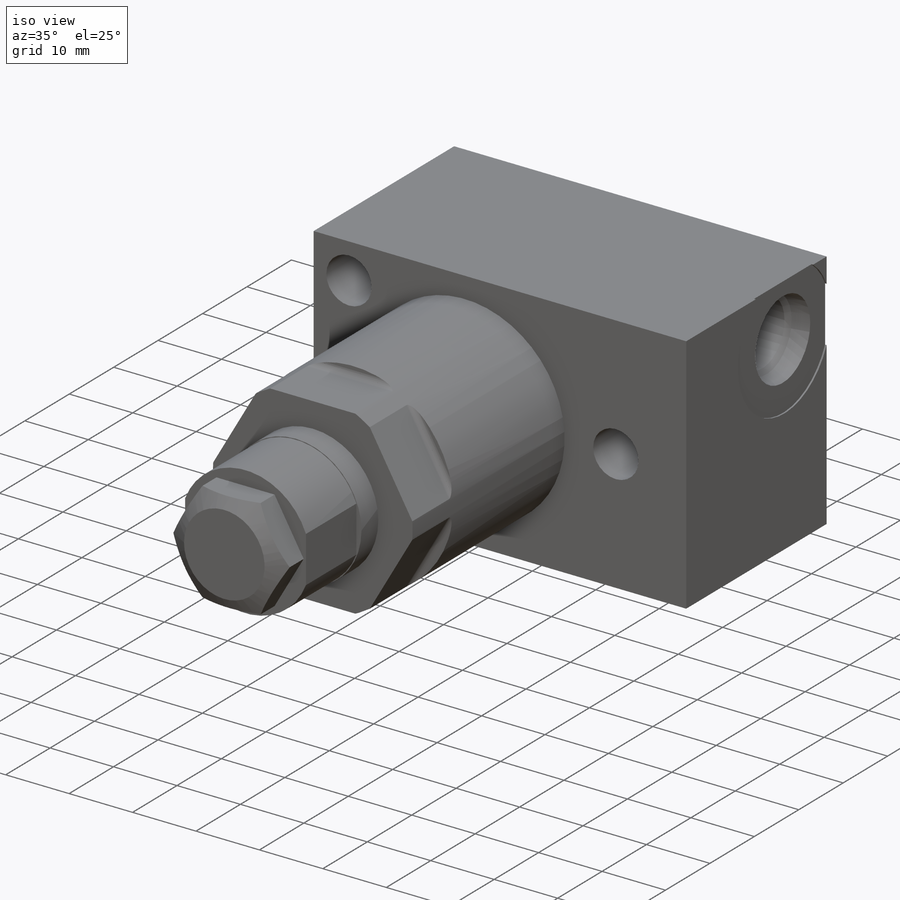
[diagram: iso view]
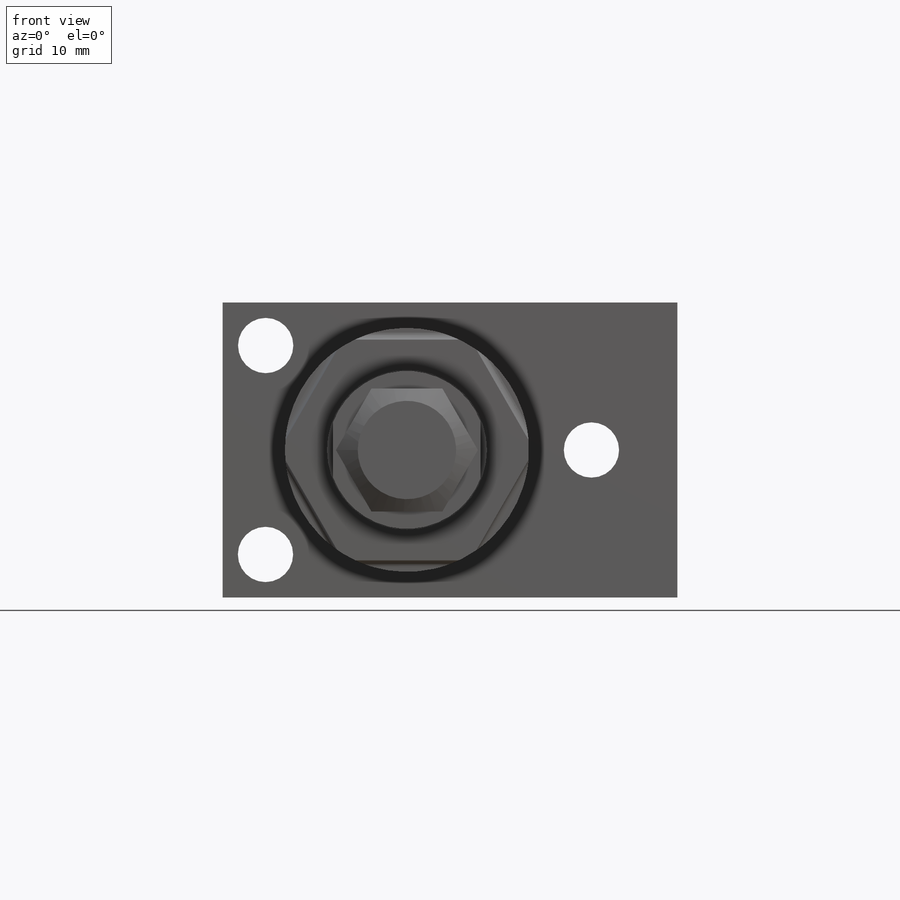
[diagram: front view]
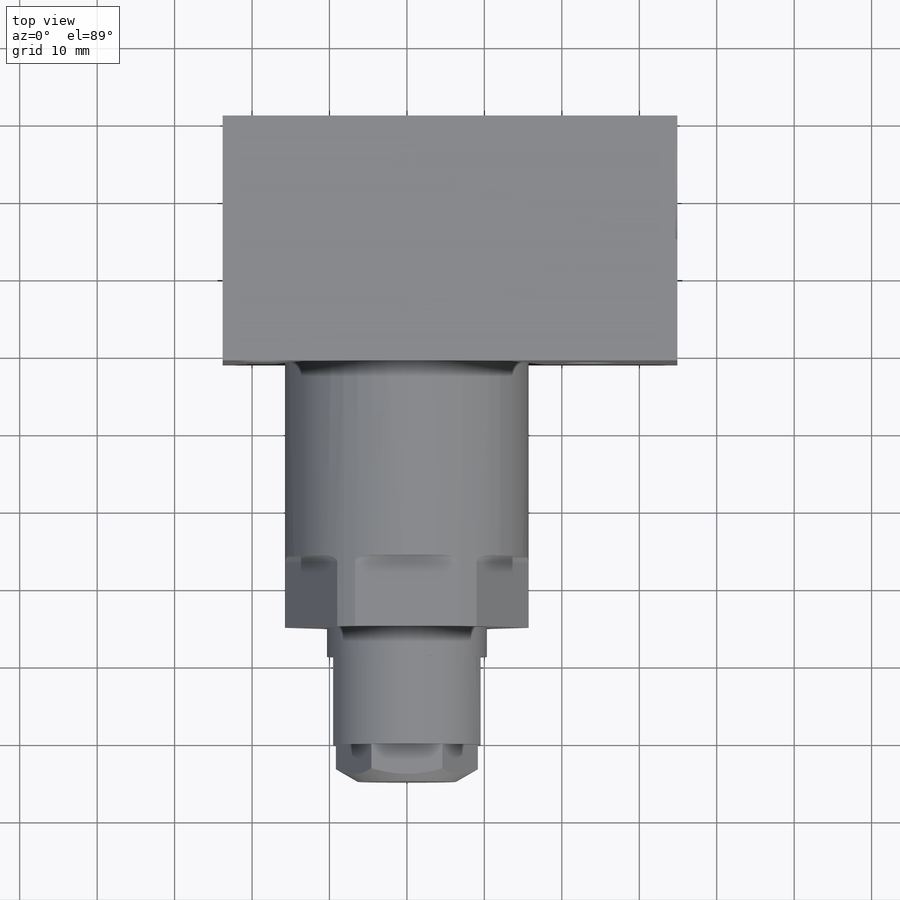
[diagram: top view]
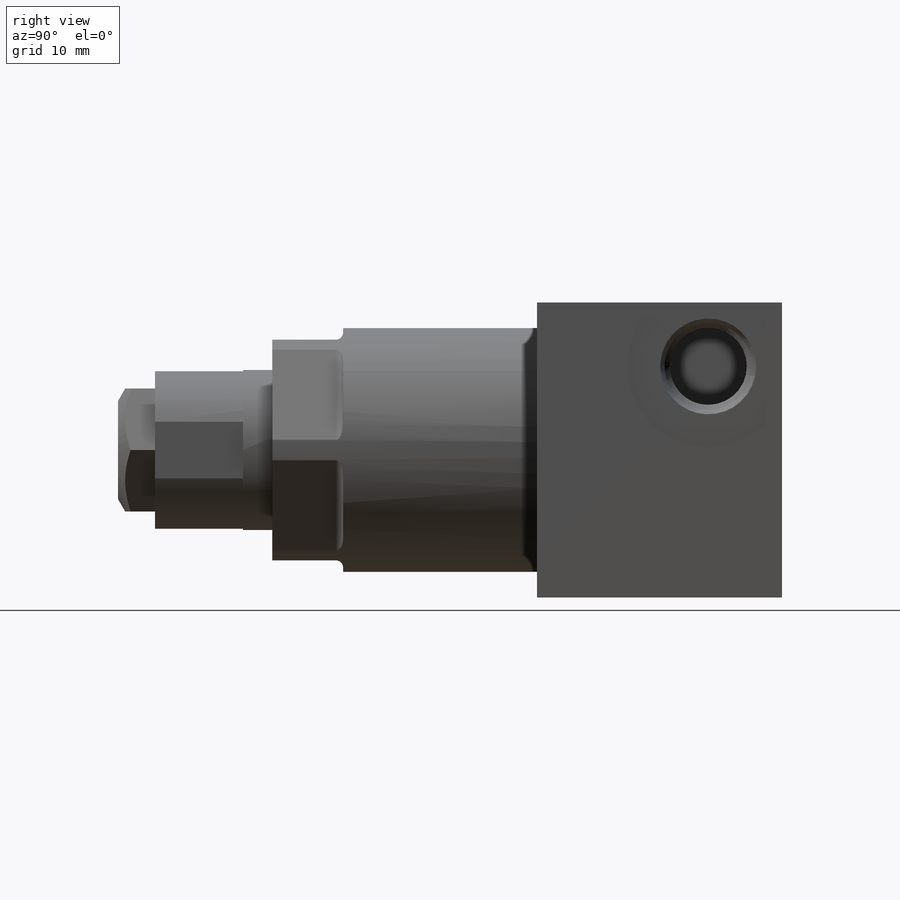
[diagram: right view]
SOLIDWORKS PART (.sldprt)
format: sldprt  version: not decoded by parser v0  size: 486,912 bytes
history: native  units: mm
features: sketch x15, plane x12, cut_revolve x5, extrude x3, cut_extrude x3, revolve x2, material x1, pattern_circular x1, hole x1 (+12 scaffold rows collapsed)
feature tree (55):
  scaffold x12  (default folders/planes/origin — collapsed)
  material  "Alloy Steel"
  plane  "Plane1"
  plane  "Plane2"
  sketch  "Sketch1"  dims[D1=31.496mm]
  extrude  "Extrude1"  Depth=55.1434mm
  plane  "Plane3"
  sketch  "Sketch2"  dims[D2=0.9144mm D1=28.4988mm D3=9.144mm]
  cut_extrude  "Cut-Extrude1"  Depth=37.7952mm
  plane  "Plane13"
  sketch  "Sketch10"  dims[c1.D1=29.7434mm c1.D2=0.8763mm c2.D2=45.0deg c2.D3=7.7978mm]
  cut_revolve  "Cut-Revolve1"  Angle=360deg
  plane  "Plane14"
  sketch  "Sketch11"  dims[D1=20.6502mm D2=15.1384mm]
  revolve  "Revolve1"  Angle=360deg
  plane  "Plane17"
  sketch  "Sketch14"  dims[D2=10.3251mm D1=19.05mm]
  cut_extrude  "Cut-Extrude10"  Depth=11.3538mm
  sketch  "Sketch15"  dims[D1=15.875mm]
  extrude  "Extrude2"  Depth=4.7752mm
  plane  "Plane18"
  sketch  "Sketch16"  dims[c1.D1=~3.250985mm c2.D1=30.0deg c2.D2=12.7mm]
  cut_revolve  "Cut-Revolve3"  Angle=360deg
  plane  "Plane19"
  sketch  "Sketch17"  dims[D1=10.668mm D2=31.623mm D3=58.7248mm D4=23.7998mm]
  extrude  "Extrude4"  Depth=38.1mm
  plane  "Plane21"
  sketch  "Sketch19"  dims[D1=20.955mm D2=9.525mm D3=10.795mm]
  cut_extrude  "Cut-Extrude12"  Depth=0.254mm
  plane  "Plane22"
  sketch  "S2D0001"  dims[D1=17.272mm]
  cut_revolve  "Cut-Revolve4"  Angle=360deg
  plane  "Plane23"
  sketch  "Sketch21"
  cut_revolve  "Cut-Revolve5"  Angle=360deg
  plane  "Plane24"
  sketch  "Sketch22"
  revolve  "Revolve2"  Angle=360deg
  pattern_circular  "CirPattern2"  Count=6 Angle=360deg
  hole  "Hole1"  Diameter=7.1374mm Depth=31.623mm
  sketch  "Sketch24"  dims[c1.D1=23.8252mm c1.D2=26.9748mm c1.D3=18.2626mm c1.D4=18.2372mm c2.D2=13.4874mm c2.D5=26.9748mm]
  sketch  "Sketch23"  dims[Diameter=7.1374mm Depth=31.623mm]
  sketch  "Sketch25"  dims[D1=11.3538mm D2=20.3962mm]
  cut_revolve  "Cut-Revolve6"  Angle=360deg
decode coverage: 28 of 30 modeling features carry decoded parameters
note: ~ marks probable driven/reference dimensions
note: suppression state not decoded; provenance and decode notes live in map.json
